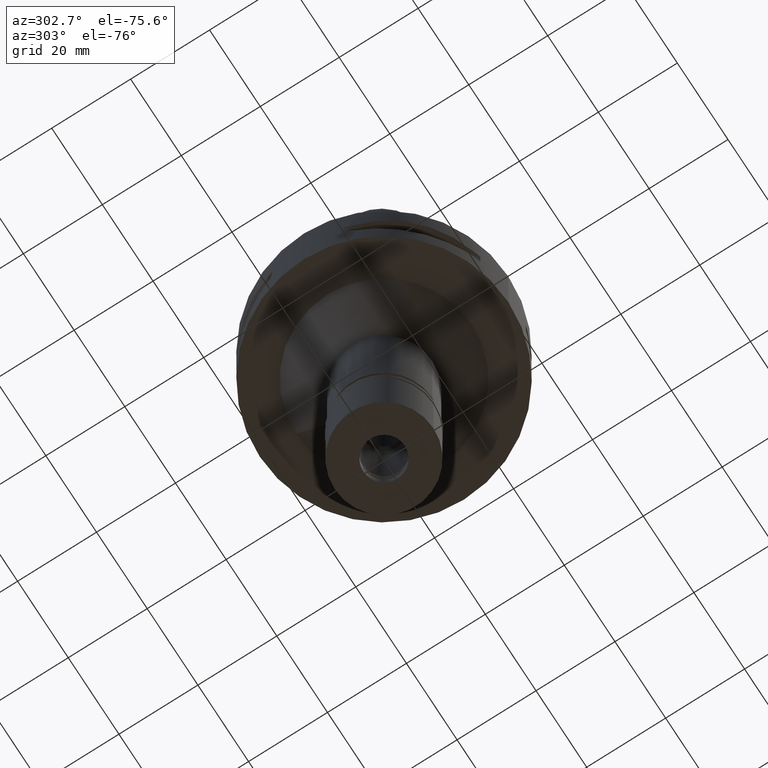
[diagram: clean part render]
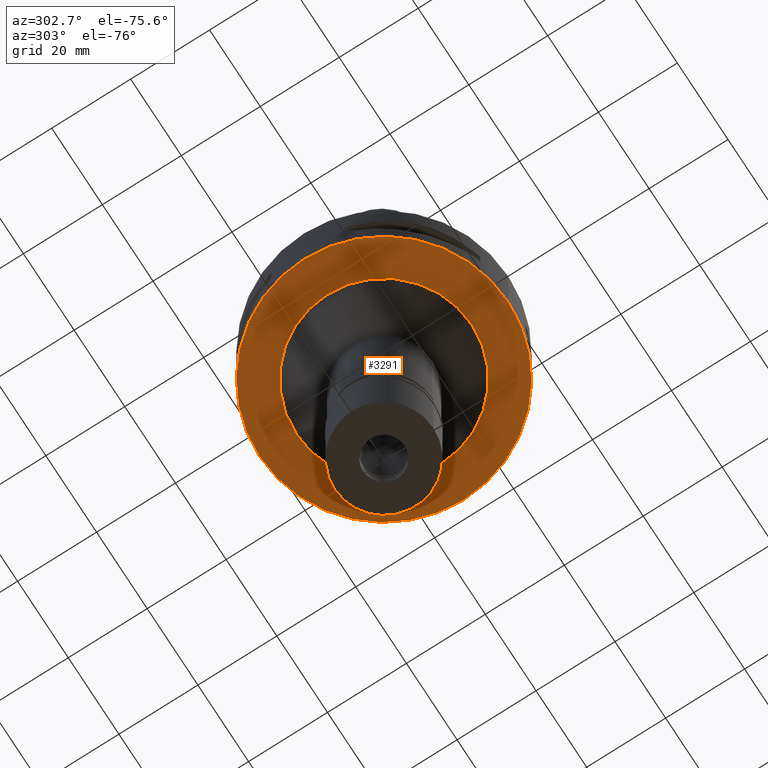
[diagram: same view with one face highlighted and labeled with its STEP entity id]
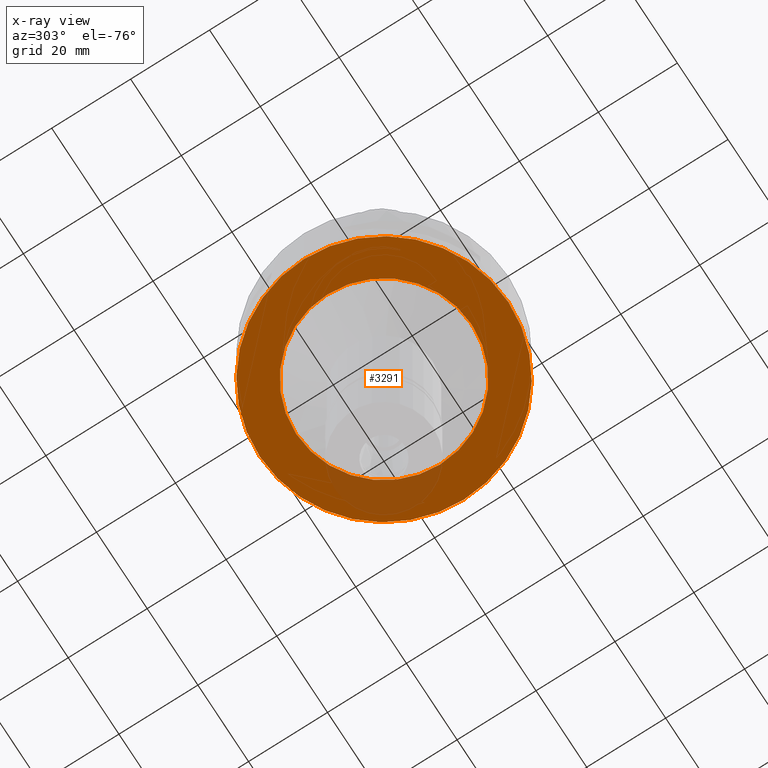
[diagram: x-ray of the same camera — body ghosted, the highlighted face saturated]
A machine part, auxiliary view. The second image highlights one B-rep face of the part: STEP entity #3291.
The next image is the same camera in x-ray: the body ghosted, the highlighted face saturated — about 10% of this face is hidden behind the body in this view.
In plain terms, the highlighted planar face has unit normal (0, 0, -1).
Its self-contained STEP definition (entity closure, byte-faithful):
#80 = ORIENTED_EDGE ( 'NONE', *, *, #1562, .F. ) ;
#211 = DIRECTION ( 'NONE',  ( 0.0000000000000000000, 0.0000000000000000000, 1.000000000000000000 ) ) ;
#317 = ORIENTED_EDGE ( 'NONE', *, *, #3931, .F. ) ;
#324 = AXIS2_PLACEMENT_3D ( 'NONE', #4100, #662, #1805 ) ;
#350 = EDGE_CURVE ( 'NONE', #2748, #910, #3284, .T. ) ;
#370 = ORIENTED_EDGE ( 'NONE', *, *, #350, .F. ) ;
#540 = DIRECTION ( 'NONE',  ( 0.0000000000000000000, -1.000000000000000000, 0.0000000000000000000 ) ) ;
#632 = CIRCLE ( 'NONE', #3996, 31.50000000000000000 ) ;
#662 = DIRECTION ( 'NONE',  ( 0.0000000000000000000, 0.0000000000000000000, -1.000000000000000000 ) ) ;
#668 = CARTESIAN_POINT ( 'NONE',  ( 0.0000000000000000000, 31.50000000000000000, -22.00000000000000000 ) ) ;
#741 = AXIS2_PLACEMENT_3D ( 'NONE', #1191, #2685, #3836 ) ;
#801 = AXIS2_PLACEMENT_3D ( 'NONE', #2674, #2011, #1575 ) ;
#803 = EDGE_LOOP ( 'NONE', ( #317, #370 ) ) ;
#815 = DIRECTION ( 'NONE',  ( 0.0000000000000000000, 0.0000000000000000000, 1.000000000000000000 ) ) ;
#910 = VERTEX_POINT ( 'NONE', #668 ) ;
#1079 = EDGE_LOOP ( 'NONE', ( #80, #3555 ) ) ;
#1169 = PLANE ( 'NONE',  #741 ) ;
#1191 = CARTESIAN_POINT ( 'NONE',  ( 0.0000000000000000000, 0.0000000000000000000, -22.00000000000000000 ) ) ;
#1220 = CARTESIAN_POINT ( 'NONE',  ( 0.0000000000000000000, 0.0000000000000000000, -22.00000000000000000 ) ) ;
#1562 = EDGE_CURVE ( 'NONE', #4751, #1812, #2566, .T. ) ;
#1575 = DIRECTION ( 'NONE',  ( 0.0000000000000000000, -1.000000000000000000, 0.0000000000000000000 ) ) ;
#1601 = CIRCLE ( 'NONE', #801, 22.25000000000000000 ) ;
#1805 = DIRECTION ( 'NONE',  ( 0.0000000000000000000, 1.000000000000000000, 0.0000000000000000000 ) ) ;
#1812 = VERTEX_POINT ( 'NONE', #3151 ) ;
#1921 = DIRECTION ( 'NONE',  ( 0.0000000000000000000, 1.000000000000000000, 0.0000000000000000000 ) ) ;
#2011 = DIRECTION ( 'NONE',  ( 0.0000000000000000000, 0.0000000000000000000, -1.000000000000000000 ) ) ;
#2566 = CIRCLE ( 'NONE', #324, 22.25000000000000000 ) ;
#2674 = CARTESIAN_POINT ( 'NONE',  ( 0.0000000000000000000, 0.0000000000000000000, -22.00000000000000000 ) ) ;
#2685 = DIRECTION ( 'NONE',  ( 0.0000000000000000000, 0.0000000000000000000, -1.000000000000000000 ) ) ;
#2748 = VERTEX_POINT ( 'NONE', #3886 ) ;
#2889 = AXIS2_PLACEMENT_3D ( 'NONE', #3970, #211, #540 ) ;
#3151 = CARTESIAN_POINT ( 'NONE',  ( 0.0000000000000000000, -22.25000000000000000, -22.00000000000000000 ) ) ;
#3284 = CIRCLE ( 'NONE', #2889, 31.50000000000000000 ) ;
#3291 = ADVANCED_FACE ( 'NONE', ( #3863, #4595 ), #1169, .T. ) ;
#3555 = ORIENTED_EDGE ( 'NONE', *, *, #4509, .F. ) ;
#3836 = DIRECTION ( 'NONE',  ( 0.0000000000000000000, -1.000000000000000000, 0.0000000000000000000 ) ) ;
#3863 = FACE_OUTER_BOUND ( 'NONE', #803, .T. ) ;
#3886 = CARTESIAN_POINT ( 'NONE',  ( 0.0000000000000000000, -31.50000000000000000, -22.00000000000000000 ) ) ;
#3931 = EDGE_CURVE ( 'NONE', #910, #2748, #632, .T. ) ;
#3970 = CARTESIAN_POINT ( 'NONE',  ( 0.0000000000000000000, 0.0000000000000000000, -22.00000000000000000 ) ) ;
#3974 = CARTESIAN_POINT ( 'NONE',  ( 0.0000000000000000000, 22.25000000000000000, -22.00000000000000000 ) ) ;
#3996 = AXIS2_PLACEMENT_3D ( 'NONE', #1220, #815, #1921 ) ;
#4100 = CARTESIAN_POINT ( 'NONE',  ( 0.0000000000000000000, 0.0000000000000000000, -22.00000000000000000 ) ) ;
#4509 = EDGE_CURVE ( 'NONE', #1812, #4751, #1601, .T. ) ;
#4595 = FACE_BOUND ( 'NONE', #1079, .T. ) ;
#4751 = VERTEX_POINT ( 'NONE', #3974 ) ;